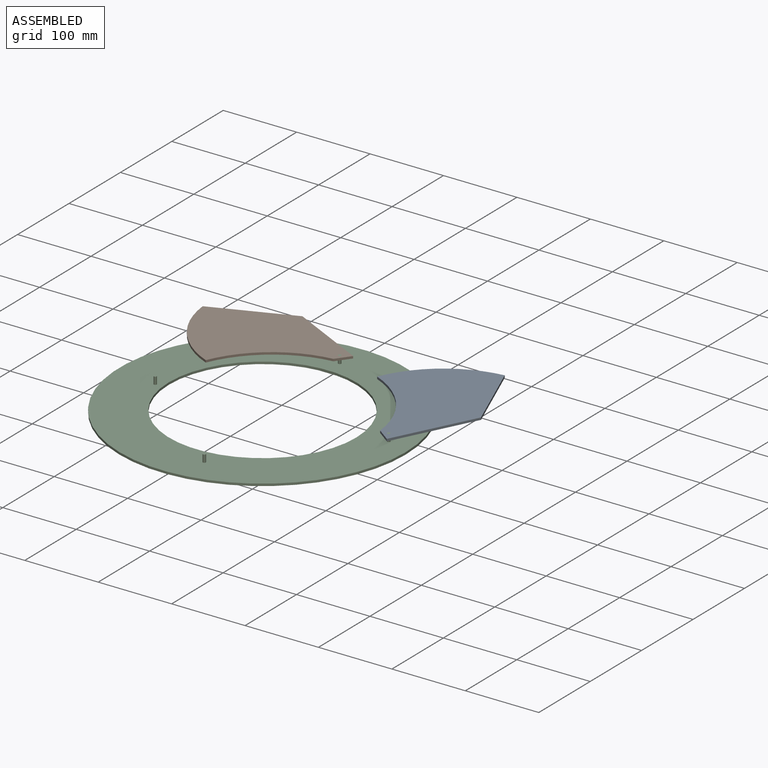
[diagram: assembled view]
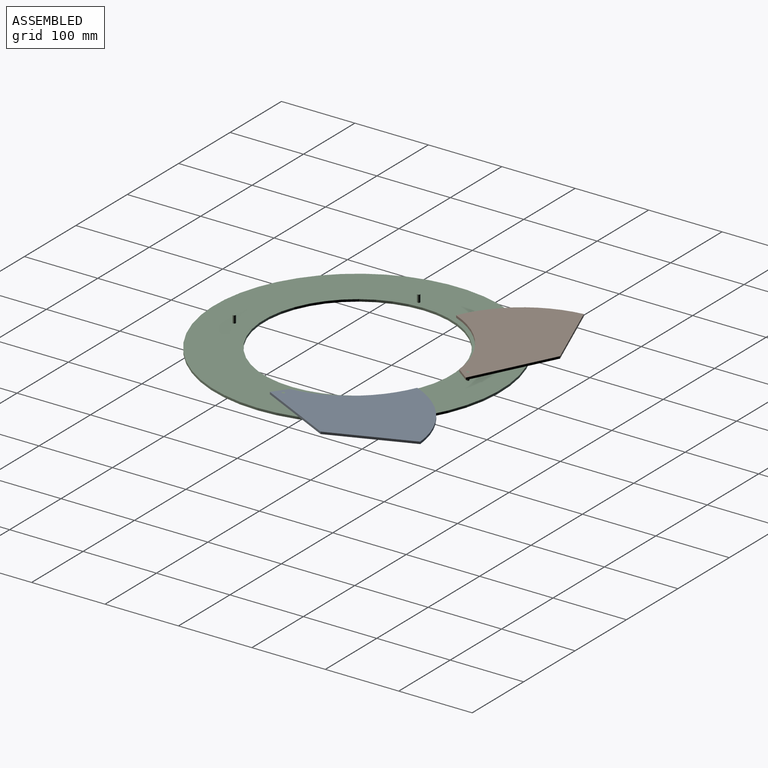
[diagram: assembled view, second angle]
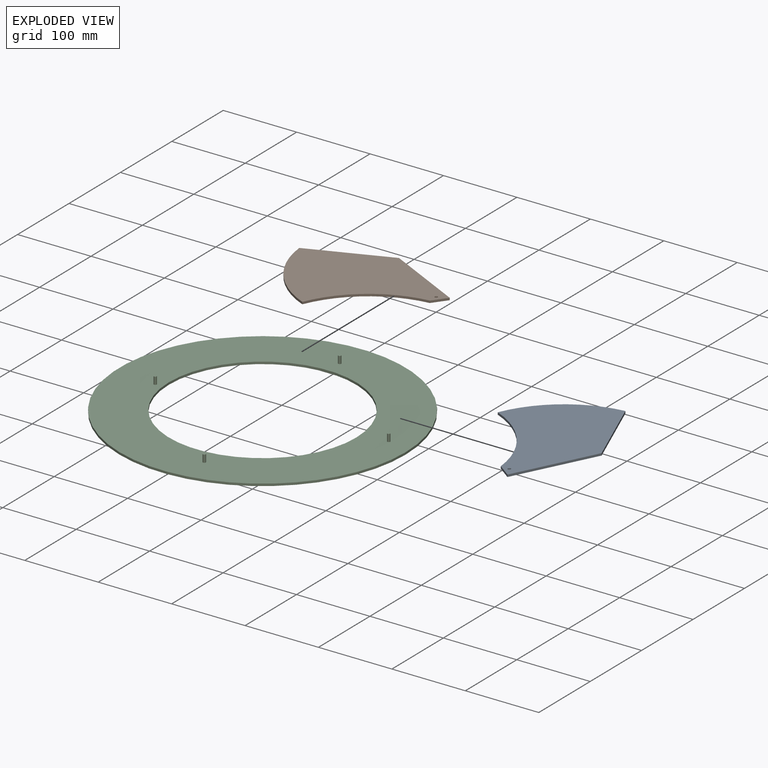
[diagram: exploded view]
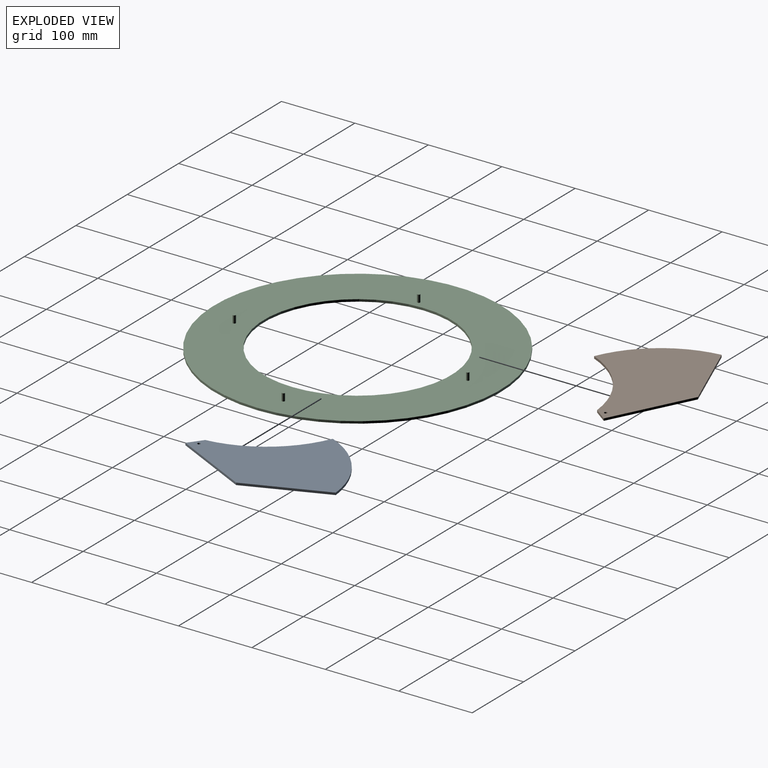
[diagram: exploded view, second angle]
ASSEMBLY  parts=3 mates=2
PART A: 8 faces, bbox 180x151.1x3 mm
  f0: plane 109.53x47.28mm, normal (0.92,0.4,0), area 357.9mm2, adj f1,f5,f6,f7
  f1: plane 108.56x36.03mm, normal (0.31,0.95,0), area 343.2mm2, adj f0,f2,f6,f7
  f2: cylinder r=140.08mm len=142.12mm, axis (0,0,-1), area 448.1mm2, adj f1,f3,f6,f7
  f3: cylinder r=140.08mm len=142.12mm, axis (0,0,-1), area 448.1mm2, adj f2,f5,f6,f7
  f4: cylinder r=2mm len=4mm, axis (0,0,-1), area 37.7mm2, adj f6,f7
  f5: plane 22.66x5.49mm, normal (0.24,-0.97,0), area 70mm2, adj f0,f3,f6,f7
  f6: plane 180x151.05mm, normal (0,0,1), area 17297mm2, adj f0,f1,f2,f3,f4,f5
  f7: plane 180x151.05mm, normal (0,0,-1), area 17297mm2, adj f0,f1,f2,f3,f4,f5
PART B: 8 faces, bbox 151.1x180x3 mm
  f0: plane 109.53x47.28mm, normal (-0.4,0.92,0), area 357.9mm2, adj f1,f5,f6,f7
  f1: plane 108.56x36.03mm, normal (-0.95,0.31,0), area 343.2mm2, adj f0,f2,f6,f7
  f2: cylinder r=140.08mm len=142.12mm, axis (0,0,-1), area 448.1mm2, adj f1,f3,f6,f7
  f3: cylinder r=140.08mm len=142.12mm, axis (0,0,-1), area 448.1mm2, adj f2,f5,f6,f7
  f4: cylinder r=2mm len=4mm, axis (0,0,-1), area 37.7mm2, adj f6,f7
  f5: plane 22.66x5.49mm, normal (0.97,0.24,0), area 70mm2, adj f0,f3,f6,f7
  f6: plane 180x151.05mm, normal (0,0,1), area 17297mm2, adj f0,f1,f2,f3,f4,f5
  f7: plane 180x151.05mm, normal (0,0,-1), area 17297mm2, adj f0,f1,f2,f3,f4,f5
PART C: 12 faces, bbox 389.5x389.5x13 mm
  f0: cylinder r=127.48mm len=254.97mm, axis (0,0,-1), area 2403mm2, adj f2,f3
  f1: cylinder r=194.77mm len=389.53mm, axis (0,0,-1), area 3671.2mm2, adj f2,f3
  f2: plane 389.53x389.53mm, normal (0,0,1), area 68065.1mm2, adj f0,f1,f4,f6,f8,f10
  f3: plane 389.53x389.53mm, normal (0,0,-1), area 68115.3mm2, adj f0,f1
  f4: cylinder r=2mm len=10mm, axis (0,0,-1), area 125.7mm2, adj f2,f5
  f5: plane 4x4mm, normal (0,0,1), area 12.6mm2, adj f4
  f6: cylinder r=2mm len=10mm, axis (0,0,-1), area 125.7mm2, adj f2,f7
  f7: plane 4x4mm, normal (0,0,1), area 12.6mm2, adj f6
  f8: cylinder r=2mm len=10mm, axis (0,0,-1), area 125.7mm2, adj f2,f9
  f9: plane 4x4mm, normal (0,0,1), area 12.6mm2, adj f8
  f10: cylinder r=2mm len=10mm, axis (0,0,-1), area 125.7mm2, adj f2,f11
  f11: plane 4x4mm, normal (0,0,1), area 12.6mm2, adj f10
PLACE A rot(axis=(0,0,-1),50.1deg) t=(-29.42,284.58,-6.67)mm
PLACE B rot(axis=(0,0,-1),50.1deg) t=(-210.94,210.42,-6.67)mm
PLACE C t=(-95.95,156.74,-16.67)mm fixed
MATE revolute C.f10 <-> A.f4  axis (0,0,1) through (66.89,169.58,-3.67)mm
MATE revolute B.f4 <-> C.f4  axis (0,0,1) through (-95.95,306.74,-3.67)mm
